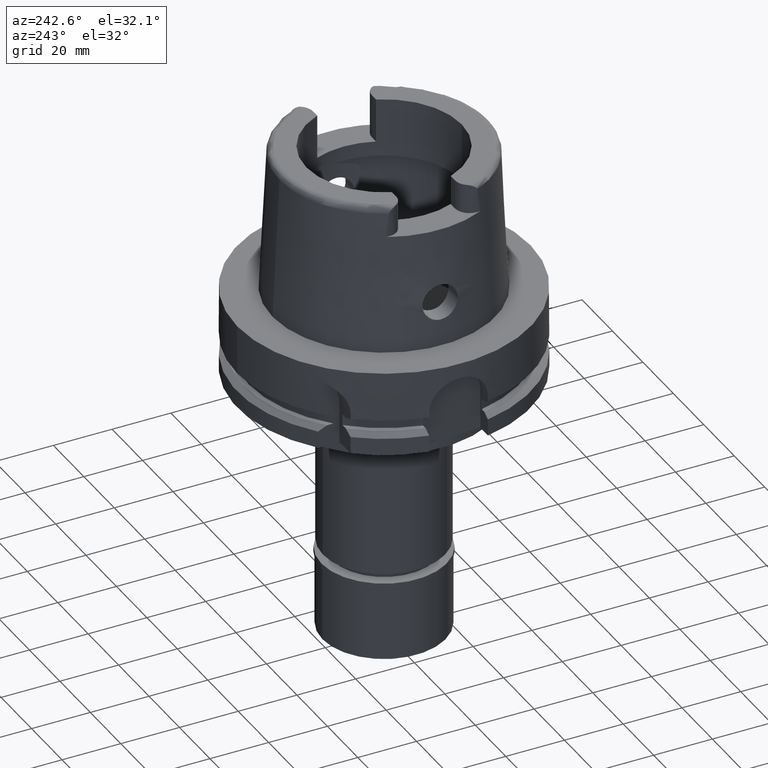
[diagram: clean part render]
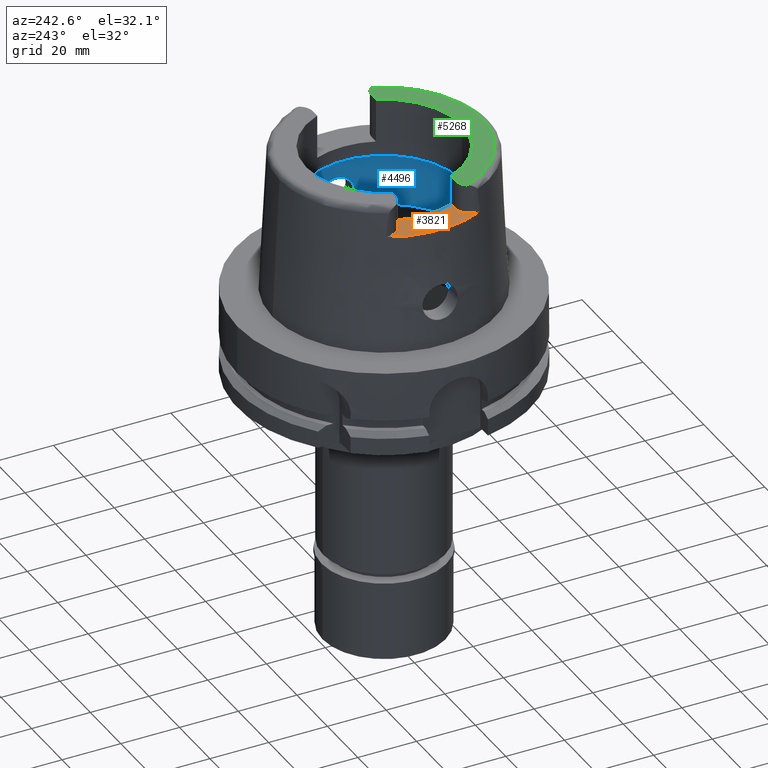
[diagram: same view with three faces highlighted in distinct colors, each labeled with its STEP entity id]
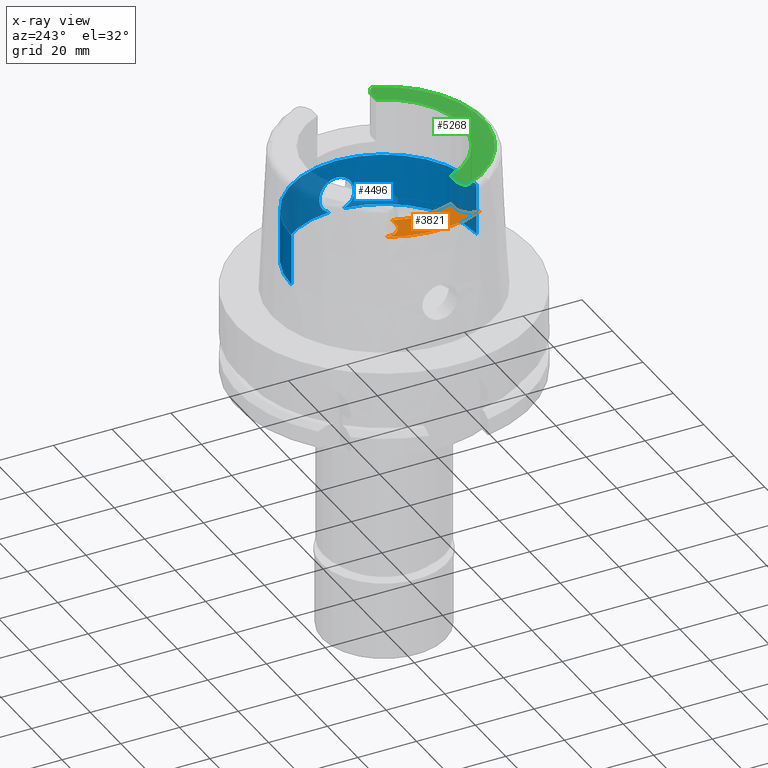
[diagram: x-ray of the same camera — body ghosted, the three highlighted faces saturated]
A machine part, auxiliary view with three faces highlighted in distinct colors.
The next image is the same camera in x-ray (body ghosted, the three faces saturated) — at least one of them is partly hidden behind the body in this view.
Their STEP definitions:

[orange] entity #3821 — the highlighted planar face has unit normal (0, 0, 1).
#69 = LINE ( 'NONE', #5186, #4869 ) ;
#107 = DIRECTION ( 'NONE',  ( 1.000000000000000000, 1.442003377036999905E-13, 0.0000000000000000000 ) ) ;
#222 = CARTESIAN_POINT ( 'NONE',  ( 0.0000000000000000000, 0.0000000000000000000, 40.00000000000000000 ) ) ;
#291 = EDGE_LOOP ( 'NONE', ( #5121, #4553, #2406, #1712, #5402, #1440, #5488, #1566 ) ) ;
#509 = AXIS2_PLACEMENT_3D ( 'NONE', #1677, #5053, #2530 ) ;
#612 = DIRECTION ( 'NONE',  ( 1.000000000000000000, 0.0000000000000000000, 0.0000000000000000000 ) ) ;
#653 = VERTEX_POINT ( 'NONE', #3463 ) ;
#708 = EDGE_CURVE ( 'NONE', #2913, #3354, #69, .T. ) ;
#727 = CARTESIAN_POINT ( 'NONE',  ( -24.53670515777999839, -10.00999999999999979, 40.00000000000000000 ) ) ;
#815 = DIRECTION ( 'NONE',  ( -1.000000000000000000, 1.435733797136999970E-13, 0.0000000000000000000 ) ) ;
#895 = AXIS2_PLACEMENT_3D ( 'NONE', #5298, #3724, #612 ) ;
#909 = CARTESIAN_POINT ( 'NONE',  ( -27.36999999999999744, 10.00999999999999979, 40.00000000000000000 ) ) ;
#1146 = AXIS2_PLACEMENT_3D ( 'NONE', #2603, #4306, #1657 ) ;
#1245 = CARTESIAN_POINT ( 'NONE',  ( -27.36999999999999744, 10.00999999999999979, 40.00000000000000000 ) ) ;
#1431 = LINE ( 'NONE', #909, #4526 ) ;
#1440 = ORIENTED_EDGE ( 'NONE', *, *, #2695, .F. ) ;
#1566 = ORIENTED_EDGE ( 'NONE', *, *, #5445, .F. ) ;
#1583 = EDGE_CURVE ( 'NONE', #2985, #1620, #2276, .T. ) ;
#1595 = CIRCLE ( 'NONE', #1146, 4.879999999999999005 ) ;
#1620 = VERTEX_POINT ( 'NONE', #3929 ) ;
#1657 = DIRECTION ( 'NONE',  ( 0.0000000000000000000, 1.000000000000000000, 0.0000000000000000000 ) ) ;
#1677 = CARTESIAN_POINT ( 'NONE',  ( -27.36999999999999744, 14.89000000000000057, 40.00000000000000000 ) ) ;
#1680 = CIRCLE ( 'NONE', #509, 4.880000000000002558 ) ;
#1693 = EDGE_CURVE ( 'NONE', #3061, #653, #1431, .T. ) ;
#1712 = ORIENTED_EDGE ( 'NONE', *, *, #5338, .F. ) ;
#1964 = EDGE_CURVE ( 'NONE', #4990, #3252, #3857, .T. ) ;
#1994 = EDGE_CURVE ( 'NONE', #3354, #3061, #1680, .T. ) ;
#2236 = DIRECTION ( 'NONE',  ( 1.119083709707969931E-06, -0.9999999999993738342, -1.731560047848954504E-13 ) ) ;
#2276 = LINE ( 'NONE', #4329, #5150 ) ;
#2294 = AXIS2_PLACEMENT_3D ( 'NONE', #3860, #5136, #3131 ) ;
#2406 = ORIENTED_EDGE ( 'NONE', *, *, #708, .F. ) ;
#2530 = DIRECTION ( 'NONE',  ( -1.000000000000000000, 0.0000000000000000000, 0.0000000000000000000 ) ) ;
#2567 = CIRCLE ( 'NONE', #2294, 35.99995025243999436 ) ;
#2603 = CARTESIAN_POINT ( 'NONE',  ( -27.36999999999999744, -14.89000000000000057, 40.00000000000000000 ) ) ;
#2661 = DIRECTION ( 'NONE',  ( 4.825223319314798498E-06, -0.9999999999883585344, 1.731606716856929216E-13 ) ) ;
#2695 = EDGE_CURVE ( 'NONE', #3252, #2985, #1595, .T. ) ;
#2913 = VERTEX_POINT ( 'NONE', #4989 ) ;
#2985 = VERTEX_POINT ( 'NONE', #4483 ) ;
#3061 = VERTEX_POINT ( 'NONE', #1245 ) ;
#3131 = DIRECTION ( 'NONE',  ( -0.8958345712659759874, -0.4443876921390880197, 0.0000000000000000000 ) ) ;
#3207 = DIRECTION ( 'NONE',  ( 0.0000000000000000000, 0.0000000000000000000, 1.000000000000000000 ) ) ;
#3252 = VERTEX_POINT ( 'NONE', #4099 ) ;
#3354 = VERTEX_POINT ( 'NONE', #5502 ) ;
#3463 = CARTESIAN_POINT ( 'NONE',  ( -24.53670515777999839, 10.00999999999999979, 40.00000000000000000 ) ) ;
#3608 = FACE_OUTER_BOUND ( 'NONE', #291, .T. ) ;
#3724 = DIRECTION ( 'NONE',  ( 0.0000000000000000000, 0.0000000000000000000, 1.000000000000000000 ) ) ;
#3821 = ADVANCED_FACE ( 'NONE', ( #3608 ), #4561, .T. ) ;
#3857 = LINE ( 'NONE', #4734, #4634 ) ;
#3860 = CARTESIAN_POINT ( 'NONE',  ( 0.0000000000000000000, 0.0000000000000000000, 40.00000000000000000 ) ) ;
#3903 = CIRCLE ( 'NONE', #4431, 26.50000000000000711 ) ;
#3929 = CARTESIAN_POINT ( 'NONE',  ( -32.24999876011999334, -15.99794043148000000, 40.00000000000000000 ) ) ;
#4099 = CARTESIAN_POINT ( 'NONE',  ( -27.36999999999999744, -10.00999999999999979, 40.00000000000000000 ) ) ;
#4306 = DIRECTION ( 'NONE',  ( 0.0000000000000000000, 0.0000000000000000000, 1.000000000000000000 ) ) ;
#4329 = CARTESIAN_POINT ( 'NONE',  ( -32.25000000000000000, -14.89000000000000057, 40.00000000000000000 ) ) ;
#4431 = AXIS2_PLACEMENT_3D ( 'NONE', #222, #3207, #4986 ) ;
#4483 = CARTESIAN_POINT ( 'NONE',  ( -32.25000000000000000, -14.89000000000000057, 40.00000000000000000 ) ) ;
#4526 = VECTOR ( 'NONE', #107, 1000.000000000000000 ) ;
#4553 = ORIENTED_EDGE ( 'NONE', *, *, #1994, .F. ) ;
#4561 = PLANE ( 'NONE',  #895 ) ;
#4634 = VECTOR ( 'NONE', #815, 1000.000000000000000 ) ;
#4734 = CARTESIAN_POINT ( 'NONE',  ( -24.53670515777999839, -10.00999999999999979, 40.00000000000000000 ) ) ;
#4869 = VECTOR ( 'NONE', #2661, 1000.000000000000227 ) ;
#4986 = DIRECTION ( 'NONE',  ( -0.9259134021805098813, 0.3777358490566039562, 0.0000000000000000000 ) ) ;
#4989 = CARTESIAN_POINT ( 'NONE',  ( -32.24999999999000266, 15.99793480980999938, 40.00000000000000000 ) ) ;
#4990 = VERTEX_POINT ( 'NONE', #727 ) ;
#5053 = DIRECTION ( 'NONE',  ( 0.0000000000000000000, 0.0000000000000000000, 1.000000000000000000 ) ) ;
#5121 = ORIENTED_EDGE ( 'NONE', *, *, #1693, .F. ) ;
#5136 = DIRECTION ( 'NONE',  ( 0.0000000000000000000, 0.0000000000000000000, -1.000000000000000000 ) ) ;
#5150 = VECTOR ( 'NONE', #2236, 1000.000000000000000 ) ;
#5186 = CARTESIAN_POINT ( 'NONE',  ( -32.25000534592000179, 15.99791057105999847, 40.00000000000000000 ) ) ;
#5298 = CARTESIAN_POINT ( 'NONE',  ( 0.0000000000000000000, 0.0000000000000000000, 40.00000000000000000 ) ) ;
#5338 = EDGE_CURVE ( 'NONE', #1620, #2913, #2567, .T. ) ;
#5402 = ORIENTED_EDGE ( 'NONE', *, *, #1583, .F. ) ;
#5445 = EDGE_CURVE ( 'NONE', #653, #4990, #3903, .T. ) ;
#5488 = ORIENTED_EDGE ( 'NONE', *, *, #1964, .F. ) ;
#5502 = CARTESIAN_POINT ( 'NONE',  ( -32.25000000000000000, 14.89000000000000057, 40.00000000000000000 ) ) ;

[blue] entity #4496 — the highlighted cylindrical surface (partial cylindrical patch) has radius 31.5 mm, axis along (0, 0, 1).
#6 = CARTESIAN_POINT ( 'NONE',  ( 31.07994342661519838, 5.127186810795189231, 18.11642369633478111 ) ) ;
#31 = CARTESIAN_POINT ( 'NONE',  ( 31.39146057856575922, -2.623126213708068644, 9.597804121014906542 ) ) ;
#32 = CARTESIAN_POINT ( 'NONE',  ( 31.01235820204978211, 5.521887666682886220, 12.65126038902635131 ) ) ;
#41 = AXIS2_PLACEMENT_3D ( 'NONE', #4032, #3611, #2723 ) ;
#50 = AXIS2_PLACEMENT_3D ( 'NONE', #3481, #801, #4633 ) ;
#64 = CARTESIAN_POINT ( 'NONE',  ( 31.07883420475886282, -5.133927056887515938, 18.10529037257128593 ) ) ;
#65 = CARTESIAN_POINT ( 'NONE',  ( 31.08261099550105300, 5.110955078027061838, 18.14296893854770687 ) ) ;
#90 = CARTESIAN_POINT ( 'NONE',  ( 31.13846683868296594, -4.759426166679978643, 18.65468646928797014 ) ) ;
#110 = CARTESIAN_POINT ( 'NONE',  ( 31.07984993651388450, -5.127765044109901638, 18.11545517955725870 ) ) ;
#132 = CARTESIAN_POINT ( 'NONE',  ( 30.95933240852243529, -5.811630177642458150, 16.52223600863163000 ) ) ;
#160 = CARTESIAN_POINT ( 'NONE',  ( 31.25913415167814335, -3.886500566118936462, 19.57146920383650723 ) ) ;
#296 = AXIS2_PLACEMENT_3D ( 'NONE', #4060, #3251, #2337 ) ;
#361 = CARTESIAN_POINT ( 'NONE',  ( 31.04516656925665785, -5.333719853767456165, 12.25201255319663574 ) ) ;
#364 = CARTESIAN_POINT ( 'NONE',  ( 30.95798640988327222, 5.818871490230399068, 16.46678530828831555 ) ) ;
#389 = CARTESIAN_POINT ( 'NONE',  ( 30.92614081974137363, 5.986368074603324096, 15.52818747631677887 ) ) ;
#419 = CARTESIAN_POINT ( 'NONE',  ( 31.28063686444619407, -3.709082751207190665, 10.28278923933702949 ) ) ;
#421 = CARTESIAN_POINT ( 'NONE',  ( 31.01918234191671786, 5.486203577511649776, 17.45331367424356372 ) ) ;
#449 = CARTESIAN_POINT ( 'NONE',  ( 31.27140100345735618, -3.786935520157026502, 10.34493851787031460 ) ) ;
#450 = CARTESIAN_POINT ( 'NONE',  ( 31.09189379749906479, 5.054047613236363645, 18.23416733600672401 ) ) ;
#473 = CARTESIAN_POINT ( 'NONE',  ( 31.10508044036110320, 4.972021697802857965, 18.36034876613993205 ) ) ;
#512 = CARTESIAN_POINT ( 'NONE',  ( 30.92787572001369156, -5.977260406834187911, 15.54911273132437444 ) ) ;
#539 = CARTESIAN_POINT ( 'NONE',  ( 30.93371347972566809, -5.946576459253946290, 15.80344265815883098 ) ) ;
#547 = CARTESIAN_POINT ( 'NONE',  ( 0.0000000000000000000, 31.50000000000000000, 9.496624327025999790 ) ) ;
#558 = CARTESIAN_POINT ( 'NONE',  ( 30.99216131076771319, -5.635640007188953859, 12.91303783525740201 ) ) ;
#587 = CARTESIAN_POINT ( 'NONE',  ( 30.94648714907189557, -5.879669211079103341, 13.80160795711451449 ) ) ;
#599 = AXIS2_PLACEMENT_3D ( 'NONE', #1879, #5275, #3165 ) ;
#689 = CARTESIAN_POINT ( 'NONE',  ( 31.30799682717442423, 3.472096596492660669, 19.89428157752134396 ) ) ;
#774 = CARTESIAN_POINT ( 'NONE',  ( 31.43757839202331184, 1.980489762233671680, 20.66371704715379565 ) ) ;
#791 = CIRCLE ( 'NONE', #599, 31.50000000000000000 ) ;
#801 = DIRECTION ( 'NONE',  ( 0.0000000000000000000, 0.0000000000000000000, 1.000000000000000000 ) ) ;
#806 = CARTESIAN_POINT ( 'NONE',  ( 31.04578962086033656, -5.330099555413807977, 12.24499431986697573 ) ) ;
#808 = CARTESIAN_POINT ( 'NONE',  ( 31.21269414980817558, 4.245461422235162097, 10.75947364941774431 ) ) ;
#814 = EDGE_CURVE ( 'NONE', #1191, #4565, #3704, .T. ) ;
#832 = CARTESIAN_POINT ( 'NONE',  ( 31.27405316013506820, 3.766091836791144232, 19.67083614214039144 ) ) ;
#851 = VECTOR ( 'NONE', #1575, 1000.000000000000000 ) ;
#857 = CARTESIAN_POINT ( 'NONE',  ( 31.24084144307349575, -4.032112334295549161, 10.55665513475695327 ) ) ;
#858 = CARTESIAN_POINT ( 'NONE',  ( 31.23133834038592482, 4.105086361239996151, 10.62410626519725021 ) ) ;
#865 = LINE ( 'NONE', #2999, #1421 ) ;
#892 = CARTESIAN_POINT ( 'NONE',  ( 30.95205847294927892, 5.850016728182851011, 16.33413282531920174 ) ) ;
#915 = CARTESIAN_POINT ( 'NONE',  ( 31.17833244018540739, 4.494009577299467040, 11.02324607710339244 ) ) ;
#936 = CARTESIAN_POINT ( 'NONE',  ( 30.93593820637317293, -5.934523303477157619, 14.11579517492844715 ) ) ;
#949 = CIRCLE ( 'NONE', #41, 31.49999999999998934 ) ;
#969 = CARTESIAN_POINT ( 'NONE',  ( 30.92535748378099214, -5.990439272434262108, 15.37896391600199486 ) ) ;
#993 = CARTESIAN_POINT ( 'NONE',  ( 31.24478707100092123, -4.000142578601820098, 19.47344728149743176 ) ) ;
#1010 = CYLINDRICAL_SURFACE ( 'NONE', #296, 31.50000000000000000 ) ;
#1012 = CARTESIAN_POINT ( 'NONE',  ( 30.95644160974891790, -5.827542915728883166, 13.56251690584222303 ) ) ;
#1042 = CARTESIAN_POINT ( 'NONE',  ( 31.26938479538287652, -3.804051455025277306, 19.63996847258456668 ) ) ;
#1101 = CARTESIAN_POINT ( 'NONE',  ( 31.43691958877289139, 1.990910738564077409, 20.66006227170717935 ) ) ;
#1105 = EDGE_CURVE ( 'NONE', #4565, #2130, #2659, .T. ) ;
#1176 = ORIENTED_EDGE ( 'NONE', *, *, #1898, .T. ) ;
#1187 = CARTESIAN_POINT ( 'NONE',  ( 31.44526226851679240, 1.855280751184632759, 20.70625288660647101 ) ) ;
#1191 = VERTEX_POINT ( 'NONE', #3341 ) ;
#1246 = CARTESIAN_POINT ( 'NONE',  ( 31.14022093112110667, 4.746243961564677427, 18.67460789632798424 ) ) ;
#1274 = CARTESIAN_POINT ( 'NONE',  ( 31.24965031920748615, -3.963256540129865169, 10.49473067062615250 ) ) ;
#1275 = CARTESIAN_POINT ( 'NONE',  ( 30.95593511852761637, 5.831238663548821144, 13.54675068044381447 ) ) ;
#1305 = CARTESIAN_POINT ( 'NONE',  ( 31.14650692347909455, -4.717085362241501656, 11.27618844019318267 ) ) ;
#1306 = CARTESIAN_POINT ( 'NONE',  ( 30.92775208938583020, 5.977411027318328074, 14.46793324744707654 ) ) ;
#1335 = CARTESIAN_POINT ( 'NONE',  ( 31.09976902777313512, -5.012334537389232736, 11.69758888125644702 ) ) ;
#1337 = CARTESIAN_POINT ( 'NONE',  ( 31.04644356686023343, 5.330231124107716489, 17.78087647721550013 ) ) ;
#1364 = CARTESIAN_POINT ( 'NONE',  ( 31.09275007007566316, -5.049392989674098331, 18.24389100051104506 ) ) ;
#1365 = CARTESIAN_POINT ( 'NONE',  ( 30.93368120438436719, 5.946711730277687735, 15.86803401409417980 ) ) ;
#1382 = CARTESIAN_POINT ( 'NONE',  ( 30.94205519966483564, -5.902657858693529214, 16.07788520470997895 ) ) ;
#1412 = CARTESIAN_POINT ( 'NONE',  ( 30.92512873479511271, -5.990998406696896872, 14.52848394555431888 ) ) ;
#1421 = VECTOR ( 'NONE', #1731, 1000.000000000000000 ) ;
#1434 = CARTESIAN_POINT ( 'NONE',  ( 31.17415888084694231, -4.519038053963284618, 18.94694945063787017 ) ) ;
#1459 = CARTESIAN_POINT ( 'NONE',  ( 31.19154537394365079, -4.398921321225700787, 19.08398155832555432 ) ) ;
#1546 = CARTESIAN_POINT ( 'NONE',  ( 31.47211239154154683, 1.331139990992936006, 20.85304534421061362 ) ) ;
#1575 = DIRECTION ( 'NONE',  ( 0.0000000000000000000, 4.980251297749999745E-14, 1.000000000000000000 ) ) ;
#1609 = CARTESIAN_POINT ( 'NONE',  ( 31.47875229831735666, 1.162986435145894726, 20.88866493886931863 ) ) ;
#1632 = CARTESIAN_POINT ( 'NONE',  ( 31.05575089752501583, -5.272422854168611117, 12.13601158013912062 ) ) ;
#1665 = CARTESIAN_POINT ( 'NONE',  ( 31.01591903648576576, -5.503779387246060750, 12.58251388947611460 ) ) ;
#1667 = CARTESIAN_POINT ( 'NONE',  ( 31.13175340653921452, 4.810160487371827998, 11.40951511559174136 ) ) ;
#1698 = CARTESIAN_POINT ( 'NONE',  ( 31.27269495443234959, 3.777356002133573476, 19.66172682914990588 ) ) ;
#1724 = CARTESIAN_POINT ( 'NONE',  ( 30.99448069278313156, 5.622125069265917929, 12.89690838049870969 ) ) ;
#1731 = DIRECTION ( 'NONE',  ( 0.0000000000000000000, -4.980251297749999745E-14, 1.000000000000000000 ) ) ;
#1754 = CARTESIAN_POINT ( 'NONE',  ( 31.30723587938423336, -3.477909003800156551, 10.10698070466151854 ) ) ;
#1755 = CARTESIAN_POINT ( 'NONE',  ( 30.94710875029627672, 5.876031469247321226, 16.21341184141273573 ) ) ;
#1783 = CARTESIAN_POINT ( 'NONE',  ( 31.17032989769484885, -4.545383508834297537, 18.91658646848391712 ) ) ;
#1784 = CARTESIAN_POINT ( 'NONE',  ( 31.08076667593378062, 5.122184330173774391, 18.12463489803345951 ) ) ;
#1804 = CARTESIAN_POINT ( 'NONE',  ( 30.93762815094126495, -5.925729445438010501, 14.05742286241953209 ) ) ;
#1806 = CARTESIAN_POINT ( 'NONE',  ( 31.40918884336000616, 2.390158196043999705, 9.496624327025999790 ) ) ;
#1823 = CARTESIAN_POINT ( 'NONE',  ( 31.08049822686088604, -5.123828647012007131, 18.12192228354330226 ) ) ;
#1854 = CARTESIAN_POINT ( 'NONE',  ( 30.93714746092238954, -5.928506821281022354, 15.93038409750430873 ) ) ;
#1863 = ORIENTED_EDGE ( 'NONE', *, *, #3882, .F. ) ;
#1879 = CARTESIAN_POINT ( 'NONE',  ( 0.0000000000000000000, 0.0000000000000000000, 9.496624327025999790 ) ) ;
#1883 = CARTESIAN_POINT ( 'NONE',  ( 31.17274451224739806, -4.528787578383446366, 18.93576471316235299 ) ) ;
#1898 = EDGE_CURVE ( 'NONE', #4062, #4983, #791, .T. ) ;
#1974 = CARTESIAN_POINT ( 'NONE',  ( 31.29475038988540447, 3.589624409586765985, 19.80800980988590609 ) ) ;
#2091 = CARTESIAN_POINT ( 'NONE',  ( 30.93324999837945910, 5.948569419086848775, 14.21580059211581926 ) ) ;
#2095 = ORIENTED_EDGE ( 'NONE', *, *, #1105, .T. ) ;
#2120 = CARTESIAN_POINT ( 'NONE',  ( 30.94743137867172678, 5.874334190984950688, 16.22159279426050205 ) ) ;
#2130 = VERTEX_POINT ( 'NONE', #3477 ) ;
#2155 = CARTESIAN_POINT ( 'NONE',  ( 31.32349046530487868, -3.327011337417507431, 10.00396380384377970 ) ) ;
#2156 = CARTESIAN_POINT ( 'NONE',  ( 31.04515965756625917, 5.333755810883202386, 12.25208129590983752 ) ) ;
#2181 = CARTESIAN_POINT ( 'NONE',  ( 30.98386632238472060, 5.680358924868381898, 13.06032426197511143 ) ) ;
#2206 = CARTESIAN_POINT ( 'NONE',  ( 30.94593095642667890, -5.882239173108793295, 16.18295263752338897 ) ) ;
#2208 = CARTESIAN_POINT ( 'NONE',  ( 31.08538339783536131, 5.094037368025559509, 18.17042460858129971 ) ) ;
#2239 = CARTESIAN_POINT ( 'NONE',  ( 31.10654970110311623, -4.964495990276641457, 18.37391207487033640 ) ) ;
#2260 = CARTESIAN_POINT ( 'NONE',  ( 31.41208232540072132, -2.351611203126827032, 20.52054309630858242 ) ) ;
#2270 = B_SPLINE_CURVE_WITH_KNOTS ( 'NONE', 3,
 ( #2435, #4929, #5432, #1609, #1546, #5017, #4075, #1187, #2909, #4604, #774, #1101, #3765, #4549, #5457, #4519, #5043, #2944, #689, #1974, #5372, #4957, #3788, #832, #1698, #4663, #2578, #3055, #1246, #4218, #473, #450, #2208, #65, #1784, #6, #1337, #421, #3496, #5514, #4246, #364, #892, #2548, #5182, #2120, #1755, #1365, #389, #3402, #3465, #3850, #1306, #5096, #3825, #2091, #5124, #4334, #1275, #2181, #1724, #32, #3430, #5481, #2994, #3906, #4751, #2156, #4691, #2608, #3077, #5156, #1667, #3371, #915, #3026, #4724, #808, #5071, #3874, #2629, #858, #4311, #2523, #2969, #4283, #1806 ),
 .UNSPECIFIED., .F., .F.,
 ( 4, 2, 2, 1, 1, 1, 1, 2, 2, 2, 2, 2, 1, 1, 2, 2, 2, 2, 1, 1, 1, 2, 2, 2, 2, 1, 1, 1, 2, 2, 2, 2, 1, 1, 2, 2, 2, 2, 1, 1, 1, 1, 1, 2, 2, 2, 2, 2, 1, 1, 2, 2, 2, 4 ),
 ( 0.0000000000000000000, 0.06250000000001131040, 0.09375000000001695866, 0.1093750000000198452, 0.1171875000000213163, 0.1210937500000220240, 0.1230468750000222877, 0.1240234375000223710, 0.1250000000000224543, 0.1875000000000307254, 0.2187500000000349165, 0.2343750000000370814, 0.2421875000000383027, 0.2460937500000389411, 0.2480468750000393852, 0.2500000000000398570, 0.3125000000000611178, 0.3437500000000718869, 0.3593750000000772715, 0.3671875000000802691, 0.3710937500000818234, 0.3730468750000825451, 0.3750000000000833222, 0.4375000000000988098, 0.4687500000001065814, 0.4843750000001104672, 0.4921875000001124101, 0.4960937500001130207, 0.4980468750001130207, 0.5000000000001130207, 0.5625000000001159073, 0.5937500000001173506, 0.6093750000001180167, 0.6171875000001183498, 0.6210937500001184608, 0.6250000000001186828, 0.6875000000001209033, 0.7187500000001219025, 0.7343750000001223466, 0.7421875000001227907, 0.7460937500001230127, 0.7480468750001229017, 0.7490234375001229017, 0.7495117187501227907, 0.7500000000001225686, 0.8125000000000919265, 0.8437500000000766054, 0.8593750000000690559, 0.8671875000000651701, 0.8710937500000632827, 0.8730468750000622835, 0.8750000000000612843, 0.9375000000000306422, 1.000000000000000000 ),
 .UNSPECIFIED. ) ;
#2281 = CARTESIAN_POINT ( 'NONE',  ( 31.34174644224787443, -3.171146747768225360, 20.10494107966232491 ) ) ;
#2315 = CARTESIAN_POINT ( 'NONE',  ( 31.07379508718859284, -5.164427715812382580, 18.05445034828940720 ) ) ;
#2337 = DIRECTION ( 'NONE',  ( 0.0000000000000000000, 1.000000000000000000, 0.0000000000000000000 ) ) ;
#2435 = CARTESIAN_POINT ( 'NONE',  ( 31.50000000000000000, 0.0000000000000000000, 21.00000000000000000 ) ) ;
#2442 = CARTESIAN_POINT ( 'NONE',  ( 31.40918884336000616, 2.390158196043999705, 9.496624327025999790 ) ) ;
#2521 = CARTESIAN_POINT ( 'NONE',  ( 31.25699292795981776, -3.904373696315554643, 10.44385189567132066 ) ) ;
#2523 = CARTESIAN_POINT ( 'NONE',  ( 31.30905946900450942, 3.469249633376950914, 10.09276669319905473 ) ) ;
#2548 = CARTESIAN_POINT ( 'NONE',  ( 30.94930874908865093, 5.864462894851047103, 16.26835216295868491 ) ) ;
#2577 = CARTESIAN_POINT ( 'NONE',  ( 31.23701424631832424, -4.061641705521139123, 10.58375201283587330 ) ) ;
#2578 = CARTESIAN_POINT ( 'NONE',  ( 31.20656786204429167, 4.300290092660576491, 19.19830570400033309 ) ) ;
#2608 = CARTESIAN_POINT ( 'NONE',  ( 31.04594355521869531, 5.329193617014270856, 12.24324506060364826 ) ) ;
#2628 = CARTESIAN_POINT ( 'NONE',  ( 31.06850304235647187, -5.198388166458768112, 12.00310492250400074 ) ) ;
#2629 = CARTESIAN_POINT ( 'NONE',  ( 31.22972433125172387, 4.117361242907274566, 10.63564870396714390 ) ) ;
#2652 = CARTESIAN_POINT ( 'NONE',  ( 31.16673046480104148, -4.570058886066544979, 18.88788730669432425 ) ) ;
#2659 = CIRCLE ( 'NONE', #50, 31.50000000000000000 ) ;
#2684 = CARTESIAN_POINT ( 'NONE',  ( 31.38261499294666379, -2.721413825894000382, 20.35005192207600899 ) ) ;
#2687 = CARTESIAN_POINT ( 'NONE',  ( 31.40918884336000616, -2.390158196043999705, 9.496624327025999790 ) ) ;
#2703 = CARTESIAN_POINT ( 'NONE',  ( 31.43467918935117922, -2.025951676136496182, 20.64761982223102876 ) ) ;
#2723 = DIRECTION ( 'NONE',  ( 0.9971171061384295209, -0.07587803796965221503, 0.0000000000000000000 ) ) ;
#2726 = CARTESIAN_POINT ( 'NONE',  ( 30.94200140833407531, -5.903012917132723913, 13.92039329289891469 ) ) ;
#2757 = CARTESIAN_POINT ( 'NONE',  ( 31.39509039489751174, -2.572352210404821982, 20.42299635082979137 ) ) ;
#2909 = CARTESIAN_POINT ( 'NONE',  ( 31.44083220571482329, 1.928355488484507552, 20.68175114115967261 ) ) ;
#2942 = CARTESIAN_POINT ( 'NONE',  ( 31.04667305263991750, -5.324970437935123257, 12.23508380929128236 ) ) ;
#2944 = CARTESIAN_POINT ( 'NONE',  ( 31.31649881192442209, 3.393896965317773518, 19.94875526140481270 ) ) ;
#2969 = CARTESIAN_POINT ( 'NONE',  ( 31.36791434816710478, 2.890017598771759122, 9.730803664233782513 ) ) ;
#2994 = CARTESIAN_POINT ( 'NONE',  ( 31.03978202246671358, 5.364983747411771198, 12.31339122229119276 ) ) ;
#2999 = CARTESIAN_POINT ( 'NONE',  ( 0.0000000000000000000, 31.50000000000000000, 9.496624327025999790 ) ) ;
#3026 = CARTESIAN_POINT ( 'NONE',  ( 31.18851592926922223, 4.421878233707920103, 10.94295407238800877 ) ) ;
#3034 = EDGE_LOOP ( 'NONE', ( #4996, #3237, #2095, #1863, #1176, #4464, #4789 ) ) ;
#3055 = CARTESIAN_POINT ( 'NONE',  ( 31.15642859291550337, 4.638933875672574203, 18.80918087171724551 ) ) ;
#3076 = CARTESIAN_POINT ( 'NONE',  ( 31.42880493544827303, -2.115547535011680580, 20.61489359789293729 ) ) ;
#3077 = CARTESIAN_POINT ( 'NONE',  ( 31.06173353536877002, 5.237259523387828963, 12.06563604468467865 ) ) ;
#3101 = CARTESIAN_POINT ( 'NONE',  ( 31.13012773132759037, -4.813637000376106201, 18.58277470826973499 ) ) ;
#3127 = CARTESIAN_POINT ( 'NONE',  ( 30.94473442587264600, -5.888543164879020964, 16.15146061629443608 ) ) ;
#3149 = CARTESIAN_POINT ( 'NONE',  ( 30.94719612376678697, -5.875573421955095910, 16.21561796998276961 ) ) ;
#3158 = EDGE_CURVE ( 'NONE', #5353, #3370, #3793, .T. ) ;
#3165 = DIRECTION ( 'NONE',  ( 0.0000000000000000000, 1.000000000000000000, 0.0000000000000000000 ) ) ;
#3171 = CARTESIAN_POINT ( 'NONE',  ( 31.20791925689769997, -4.280337166327460530, 19.20810264865404804 ) ) ;
#3237 = ORIENTED_EDGE ( 'NONE', *, *, #814, .T. ) ;
#3251 = DIRECTION ( 'NONE',  ( 0.0000000000000000000, 0.0000000000000000000, 1.000000000000000000 ) ) ;
#3341 = CARTESIAN_POINT ( 'NONE',  ( 0.0000000000000000000, -31.50000000000000000, 9.496624327025999790 ) ) ;
#3345 = CARTESIAN_POINT ( 'NONE',  ( 31.04847930279105839, -5.314496369088463013, 12.21496377446736048 ) ) ;
#3369 = CARTESIAN_POINT ( 'NONE',  ( 31.05224934946171444, -5.292672633281177319, 12.17353485423571868 ) ) ;
#3370 = VERTEX_POINT ( 'NONE', #3393 ) ;
#3371 = CARTESIAN_POINT ( 'NONE',  ( 31.14922811019159354, 4.695564990377505410, 11.25908503201786814 ) ) ;
#3393 = CARTESIAN_POINT ( 'NONE',  ( 31.50000000000000000, 0.0000000000000000000, 21.00000000000000000 ) ) ;
#3402 = CARTESIAN_POINT ( 'NONE',  ( 30.92305064168423812, 6.002379107351443643, 15.01847255593690811 ) ) ;
#3430 = CARTESIAN_POINT ( 'NONE',  ( 31.02178594510036191, 5.468548919939948405, 12.52830873802309597 ) ) ;
#3465 = CARTESIAN_POINT ( 'NONE',  ( 30.92339064881641875, 6.000483960322590349, 14.84857594199501385 ) ) ;
#3477 = CARTESIAN_POINT ( 'NONE',  ( 0.0000000000000000000, 31.50000000000000000, 27.11662432702999936 ) ) ;
#3481 = CARTESIAN_POINT ( 'NONE',  ( 0.0000000000000000000, 0.0000000000000000000, 27.11662432702999936 ) ) ;
#3495 = CARTESIAN_POINT ( 'NONE',  ( 30.96438855580216654, -5.785537089370411223, 13.40108695375786496 ) ) ;
#3496 = CARTESIAN_POINT ( 'NONE',  ( 30.98612573582064300, 5.668773299044499225, 16.97339902289759550 ) ) ;
#3517 = CARTESIAN_POINT ( 'NONE',  ( 31.27234737172142331, -3.780047941302525860, 19.65954710132990613 ) ) ;
#3545 = CARTESIAN_POINT ( 'NONE',  ( 31.26630935310781467, -3.828901421194403021, 19.61955822672340588 ) ) ;
#3570 = CARTESIAN_POINT ( 'NONE',  ( 30.97632546820336330, -5.723077517489620902, 16.83400863669762515 ) ) ;
#3592 = CARTESIAN_POINT ( 'NONE',  ( 31.02206680510773040, -5.468744875070024491, 17.47498076031610381 ) ) ;
#3611 = DIRECTION ( 'NONE',  ( 0.0000000000000000000, 0.0000000000000000000, -1.000000000000000000 ) ) ;
#3704 = LINE ( 'NONE', #5400, #851 ) ;
#3765 = CARTESIAN_POINT ( 'NONE',  ( 31.43652097807678913, 1.997185708122694026, 20.65785017133801915 ) ) ;
#3786 = CARTESIAN_POINT ( 'NONE',  ( 31.04514588264369834, -5.333839943336500689, 12.25224459802766752 ) ) ;
#3788 = CARTESIAN_POINT ( 'NONE',  ( 31.27640482556440205, 3.746488994445092757, 19.68657425038498232 ) ) ;
#3793 = B_SPLINE_CURVE_WITH_KNOTS ( 'NONE', 3,
 ( #5095, #31, #4690, #2155, #1754, #419, #449, #2521, #1274, #857, #2577, #4750, #5155, #3849, #1305, #1335, #5042, #2628, #5455, #1632, #3369, #3345, #2942, #806, #4217, #361, #3786, #1665, #558, #3495, #1012, #587, #2726, #1804, #936, #3932, #3905, #1412, #3982, #969, #512, #539, #1854, #1382, #3127, #2206, #4820, #3149, #132, #3570, #4455, #3592, #4384, #5259, #5180, #4427, #2315, #5278, #64, #110, #1823, #1364, #2239, #3101, #90, #3955, #4009, #2652, #1783, #1883, #1434, #1459, #3171, #4867, #993, #160, #3545, #1042, #4797, #3517, #5206, #2281, #2684, #2757, #2260, #4842, #3076, #5233, #2703, #4772, #4402, #4359, #5339, #4065 ),
 .UNSPECIFIED., .F., .F.,
 ( 4, 2, 2, 2, 1, 1, 2, 2, 2, 2, 2, 1, 1, 1, 1, 2, 2, 2, 2, 1, 1, 2, 2, 2, 2, 1, 1, 1, 2, 2, 2, 2, 2, 1, 1, 1, 2, 2, 2, 2, 1, 1, 2, 2, 2, 1, 1, 1, 2, 2, 2, 2, 1, 1, 1, 2, 2, 4 ),
 ( 0.0000000000000000000, 0.06249999999999027167, 0.09374999999998545608, 0.1093749999999831107, 0.1171874999999819172, 0.1210937499999813205, 0.1230468749999810429, 0.1249999999999807654, 0.1874999999999735767, 0.2187499999999699962, 0.2343749999999683309, 0.2421874999999673872, 0.2460937499999669709, 0.2480468749999667211, 0.2490234374999666100, 0.2495117187499667766, 0.2499999999999669154, 0.3124999999999806266, 0.3437499999999874545, 0.3593749999999906741, 0.3671874999999922839, 0.3710937499999929501, 0.3749999999999936162, 0.4375000000000039413, 0.4687500000000091038, 0.4843750000000116573, 0.4921875000000129341, 0.4960937500000136002, 0.4980468750000142109, 0.5000000000000148770, 0.5625000000000308642, 0.5937500000000389688, 0.6093750000000429656, 0.6171875000000447420, 0.6210937500000455191, 0.6230468750000459632, 0.6240234375000459632, 0.6250000000000459632, 0.6562500000000432987, 0.6718750000000417444, 0.6796875000000409672, 0.6835937500000407452, 0.6855468750000405231, 0.6875000000000403011, 0.7187500000000317524, 0.7343750000000277556, 0.7421875000000257572, 0.7460937500000249800, 0.7480468750000247580, 0.7500000000000245359, 0.8125000000000175415, 0.8437500000000142109, 0.8593750000000124345, 0.8671875000000115463, 0.8710937500000111022, 0.8730468750000109912, 0.8750000000000108802, 1.000000000000000000 ),
 .UNSPECIFIED. ) ;
#3825 = CARTESIAN_POINT ( 'NONE',  ( 30.93222307588827746, 5.953947335122485640, 14.25773456526052030 ) ) ;
#3849 = CARTESIAN_POINT ( 'NONE',  ( 31.18534778162140242, -4.455291796195552045, 10.95204681757130416 ) ) ;
#3850 = CARTESIAN_POINT ( 'NONE',  ( 30.92595575924154261, 5.986892630695828110, 14.59465955126851533 ) ) ;
#3874 = CARTESIAN_POINT ( 'NONE',  ( 31.22684705252590831, 4.139171888733835125, 10.65632852125138719 ) ) ;
#3882 = EDGE_CURVE ( 'NONE', #4062, #2130, #865, .T. ) ;
#3905 = CARTESIAN_POINT ( 'NONE',  ( 30.93437202078807147, -5.942685729333410549, 14.17239311531688983 ) ) ;
#3906 = CARTESIAN_POINT ( 'NONE',  ( 31.04290616261345903, 5.346857069822865682, 12.27762055518139839 ) ) ;
#3932 = CARTESIAN_POINT ( 'NONE',  ( 30.93485253412783820, -5.940179514840165709, 14.15462887223034905 ) ) ;
#3955 = CARTESIAN_POINT ( 'NONE',  ( 31.15169514563684672, -4.671635427515087535, 18.76537383118921909 ) ) ;
#3982 = CARTESIAN_POINT ( 'NONE',  ( 30.92192358580875577, -6.008214329859579372, 14.86860033528498626 ) ) ;
#4009 = CARTESIAN_POINT ( 'NONE',  ( 31.15848921059397725, -4.626121234484023681, 18.82142084166779838 ) ) ;
#4032 = CARTESIAN_POINT ( 'NONE',  ( 0.0000000000000000000, 0.0000000000000000000, 9.496624327025999790 ) ) ;
#4060 = CARTESIAN_POINT ( 'NONE',  ( 0.0000000000000000000, 0.0000000000000000000, -116.9500000000000028 ) ) ;
#4062 = VERTEX_POINT ( 'NONE', #547 ) ;
#4065 = CARTESIAN_POINT ( 'NONE',  ( 31.50000000000000000, 0.0000000000000000000, 21.00000000000000000 ) ) ;
#4075 = CARTESIAN_POINT ( 'NONE',  ( 31.45368665023863386, 1.708864027833958632, 20.75267065280553780 ) ) ;
#4217 = CARTESIAN_POINT ( 'NONE',  ( 31.04541522723252811, -5.332274785468095857, 12.24920955023412183 ) ) ;
#4218 = CARTESIAN_POINT ( 'NONE',  ( 31.11666758030229829, 4.898254265360369786, 18.46619371724810321 ) ) ;
#4246 = CARTESIAN_POINT ( 'NONE',  ( 30.96380205162004629, 5.788176507945655302, 16.58225973777830120 ) ) ;
#4265 = EDGE_CURVE ( 'NONE', #3370, #4983, #2270, .T. ) ;
#4283 = CARTESIAN_POINT ( 'NONE',  ( 31.39148165975850446, 2.622849184680384749, 9.597683805186871808 ) ) ;
#4311 = CARTESIAN_POINT ( 'NONE',  ( 31.27377190143330310, 3.781501996804778276, 10.32190482682020338 ) ) ;
#4334 = CARTESIAN_POINT ( 'NONE',  ( 30.94253019240696645, 5.900031414499672167, 13.86580438277718663 ) ) ;
#4359 = CARTESIAN_POINT ( 'NONE',  ( 31.47898662157553318, -1.327305061032411970, 20.89339729618392738 ) ) ;
#4384 = CARTESIAN_POINT ( 'NONE',  ( 31.04264841156342669, -5.349512917937515155, 17.71861851111085429 ) ) ;
#4402 = CARTESIAN_POINT ( 'NONE',  ( 31.43630319665084016, -2.000633274148063467, 20.65664097112443898 ) ) ;
#4427 = CARTESIAN_POINT ( 'NONE',  ( 31.06686353808661849, -5.206168992445896038, 17.98323322139119895 ) ) ;
#4455 = CARTESIAN_POINT ( 'NONE',  ( 31.00965186941976626, -5.538760453944932216, 17.31331658479441060 ) ) ;
#4464 = ORIENTED_EDGE ( 'NONE', *, *, #4265, .F. ) ;
#4496 = ADVANCED_FACE ( 'NONE', ( #5276 ), #1010, .F. ) ;
#4519 = CARTESIAN_POINT ( 'NONE',  ( 31.35604797469014571, 3.006503335397936461, 20.19521886540622901 ) ) ;
#4529 = EDGE_CURVE ( 'NONE', #5353, #1191, #949, .T. ) ;
#4549 = CARTESIAN_POINT ( 'NONE',  ( 31.41935557497223286, 2.266486460318849705, 20.56256680226775302 ) ) ;
#4565 = VERTEX_POINT ( 'NONE', #4840 ) ;
#4604 = CARTESIAN_POINT ( 'NONE',  ( 31.43856270632851135, 1.964855403844353088, 20.66917599335422295 ) ) ;
#4633 = DIRECTION ( 'NONE',  ( 0.0000000000000000000, -1.000000000000000000, 0.0000000000000000000 ) ) ;
#4663 = CARTESIAN_POINT ( 'NONE',  ( 31.23940190265986772, 4.052382083139893787, 19.43805874657591914 ) ) ;
#4690 = CARTESIAN_POINT ( 'NONE',  ( 31.36781995095271114, -2.891030392004052985, 9.731274184118150927 ) ) ;
#4691 = CARTESIAN_POINT ( 'NONE',  ( 31.04561233033818013, 5.331121729183105451, 12.24697450737363802 ) ) ;
#4724 = CARTESIAN_POINT ( 'NONE',  ( 31.20451423152373138, 4.305611747129967526, 10.82090145173631512 ) ) ;
#4750 = CARTESIAN_POINT ( 'NONE',  ( 31.23445123423124059, -4.081330726004147813, 10.60194143591352756 ) ) ;
#4751 = CARTESIAN_POINT ( 'NONE',  ( 31.04448160346385777, 5.337700237538184567, 12.25974200205381059 ) ) ;
#4772 = CARTESIAN_POINT ( 'NONE',  ( 31.43582625036867029, -2.008097105409311744, 20.65399291348545674 ) ) ;
#4789 = ORIENTED_EDGE ( 'NONE', *, *, #3158, .F. ) ;
#4797 = CARTESIAN_POINT ( 'NONE',  ( 31.27143516933251277, -3.787448466993871055, 19.65353081099980415 ) ) ;
#4820 = CARTESIAN_POINT ( 'NONE',  ( 30.94673937474064829, -5.877979907296396966, 16.20393805559050548 ) ) ;
#4840 = CARTESIAN_POINT ( 'NONE',  ( 0.0000000000000000000, -31.50000000000000000, 27.11662432702999936 ) ) ;
#4842 = CARTESIAN_POINT ( 'NONE',  ( 31.42014799754655385, -2.241948991979260342, 20.56635063826048082 ) ) ;
#4867 = CARTESIAN_POINT ( 'NONE',  ( 31.23249526844682933, -4.094814554887085123, 19.38632503365269244 ) ) ;
#4929 = CARTESIAN_POINT ( 'NONE',  ( 31.50000000000001421, 0.3265472149150754899, 21.00000000000000711 ) ) ;
#4957 = CARTESIAN_POINT ( 'NONE',  ( 31.27991690307833750, 3.717080725262412066, 19.71003267285577465 ) ) ;
#4983 = VERTEX_POINT ( 'NONE', #2442 ) ;
#4996 = ORIENTED_EDGE ( 'NONE', *, *, #4529, .T. ) ;
#5017 = CARTESIAN_POINT ( 'NONE',  ( 31.46016055934507705, 1.583016060059128316, 20.78805481339340133 ) ) ;
#5042 = CARTESIAN_POINT ( 'NONE',  ( 31.08611029445572882, -5.094553945202400236, 11.82761940520752297 ) ) ;
#5043 = CARTESIAN_POINT ( 'NONE',  ( 31.34101784584630934, 3.160491833568750408, 20.10354311864270116 ) ) ;
#5071 = CARTESIAN_POINT ( 'NONE',  ( 31.22255373033181769, 4.171618812877786020, 10.68732656836451156 ) ) ;
#5095 = CARTESIAN_POINT ( 'NONE',  ( 31.40918884336000616, -2.390158196043999705, 9.496624327025999790 ) ) ;
#5096 = CARTESIAN_POINT ( 'NONE',  ( 30.93074691401797338, 5.961683198801113193, 14.32068905443762752 ) ) ;
#5124 = CARTESIAN_POINT ( 'NONE',  ( 30.93382932713273803, 5.945537591978965253, 14.19317861226803323 ) ) ;
#5155 = CARTESIAN_POINT ( 'NONE',  ( 31.23332474824206173, -4.089952196194744261, 10.60995204330339270 ) ) ;
#5156 = CARTESIAN_POINT ( 'NONE',  ( 31.08511384461257165, 5.105111756524569167, 11.82907956089339763 ) ) ;
#5180 = CARTESIAN_POINT ( 'NONE',  ( 31.06110588555900875, -5.240530721476065246, 17.92215538999412061 ) ) ;
#5182 = CARTESIAN_POINT ( 'NONE',  ( 30.94817620556403170, 5.870417001622746156, 16.24028035920213853 ) ) ;
#5206 = CARTESIAN_POINT ( 'NONE',  ( 31.30991094865379765, -3.474571594553556686, 19.90636111237910910 ) ) ;
#5233 = CARTESIAN_POINT ( 'NONE',  ( 31.43294515116537724, -2.052765183954003092, 20.63797733516987876 ) ) ;
#5259 = CARTESIAN_POINT ( 'NONE',  ( 31.04983548086929801, -5.307402022677979225, 17.80001807738775099 ) ) ;
#5275 = DIRECTION ( 'NONE',  ( 0.0000000000000000000, 0.0000000000000000000, -1.000000000000000000 ) ) ;
#5276 = FACE_OUTER_BOUND ( 'NONE', #3034, .T. ) ;
#5278 = CARTESIAN_POINT ( 'NONE',  ( 31.07731443369452862, -5.143140088095518259, 18.09004152505130136 ) ) ;
#5339 = CARTESIAN_POINT ( 'NONE',  ( 31.49999999999999289, -0.6497135255278082555, 20.99999999999998934 ) ) ;
#5353 = VERTEX_POINT ( 'NONE', #2687 ) ;
#5372 = CARTESIAN_POINT ( 'NONE',  ( 31.28800380619987820, 3.648444827490624487, 19.76373384510609910 ) ) ;
#5400 = CARTESIAN_POINT ( 'NONE',  ( 0.0000000000000000000, -31.50000000000000000, 9.496624327025999790 ) ) ;
#5432 = CARTESIAN_POINT ( 'NONE',  ( 31.49468807457933650, 0.6599461429152900793, 20.97328384817429026 ) ) ;
#5455 = CARTESIAN_POINT ( 'NONE',  ( 31.06311409963620207, -5.229744054156727273, 12.05835644289808961 ) ) ;
#5457 = CARTESIAN_POINT ( 'NONE',  ( 31.39719067990927215, 2.554411315067872668, 20.43989230540277191 ) ) ;
#5481 = CARTESIAN_POINT ( 'NONE',  ( 31.03364070838958710, 5.400491843053921492, 12.38498101507262206 ) ) ;
#5514 = CARTESIAN_POINT ( 'NONE',  ( 30.97641273900847381, 5.721091981084633460, 16.81527937345244084 ) ) ;

[green] entity #5268 — the highlighted planar face has unit normal (0, 0, 1).
#82 = DIRECTION ( 'NONE',  ( 0.0000000000000000000, -1.000000000000000000, 0.0000000000000000000 ) ) ;
#208 = AXIS2_PLACEMENT_3D ( 'NONE', #4788, #961, #82 ) ;
#210 = AXIS2_PLACEMENT_3D ( 'NONE', #265, #2717, #5269 ) ;
#214 = VECTOR ( 'NONE', #1416, 1000.000000000000000 ) ;
#265 = CARTESIAN_POINT ( 'NONE',  ( 27.36999999999999744, -14.89000000000000057, 50.00000000000000000 ) ) ;
#267 = ORIENTED_EDGE ( 'NONE', *, *, #5300, .T. ) ;
#349 = CARTESIAN_POINT ( 'NONE',  ( 27.36999999999999744, -10.00999999999999979, 50.00000000000000000 ) ) ;
#359 = ORIENTED_EDGE ( 'NONE', *, *, #463, .F. ) ;
#463 = EDGE_CURVE ( 'NONE', #5054, #4555, #2828, .T. ) ;
#491 = EDGE_CURVE ( 'NONE', #3447, #2860, #1563, .T. ) ;
#643 = CARTESIAN_POINT ( 'NONE',  ( 31.35385269249000473, -12.07161079256999869, 50.00000000000000000 ) ) ;
#744 = DIRECTION ( 'NONE',  ( -0.8163632566568778115, 0.5775387720149849358, 0.0000000000000000000 ) ) ;
#930 = DIRECTION ( 'NONE',  ( 0.0000000000000000000, 0.0000000000000000000, -1.000000000000000000 ) ) ;
#961 = DIRECTION ( 'NONE',  ( 0.0000000000000000000, 0.0000000000000000000, 1.000000000000000000 ) ) ;
#1226 = EDGE_CURVE ( 'NONE', #4555, #3447, #1316, .T. ) ;
#1299 = VECTOR ( 'NONE', #3780, 1000.000000000000000 ) ;
#1314 = VERTEX_POINT ( 'NONE', #5127 ) ;
#1316 = CIRCLE ( 'NONE', #3360, 33.59743838135999994 ) ;
#1416 = DIRECTION ( 'NONE',  ( -1.000000000000000000, -1.454542536837999925E-13, 0.0000000000000000000 ) ) ;
#1524 = ORIENTED_EDGE ( 'NONE', *, *, #1226, .F. ) ;
#1563 = CIRCLE ( 'NONE', #1839, 4.880000000000001670 ) ;
#1686 = ORIENTED_EDGE ( 'NONE', *, *, #3383, .T. ) ;
#1708 = CARTESIAN_POINT ( 'NONE',  ( 27.36999999999999744, -10.00999999999999979, 50.00000000000000000 ) ) ;
#1839 = AXIS2_PLACEMENT_3D ( 'NONE', #5094, #3320, #744 ) ;
#1886 = FACE_OUTER_BOUND ( 'NONE', #5192, .T. ) ;
#1944 = CARTESIAN_POINT ( 'NONE',  ( 24.53670515777999839, -10.00999999999999979, 50.00000000000000000 ) ) ;
#2085 = LINE ( 'NONE', #2931, #1299 ) ;
#2142 = ORIENTED_EDGE ( 'NONE', *, *, #491, .F. ) ;
#2286 = CIRCLE ( 'NONE', #208, 26.50000000000000000 ) ;
#2387 = AXIS2_PLACEMENT_3D ( 'NONE', #5238, #3442, #2734 ) ;
#2717 = DIRECTION ( 'NONE',  ( 0.0000000000000000000, 0.0000000000000000000, -1.000000000000000000 ) ) ;
#2734 = DIRECTION ( 'NONE',  ( 1.000000000000000000, 0.0000000000000000000, 0.0000000000000000000 ) ) ;
#2828 = CIRCLE ( 'NONE', #210, 4.879999999999999005 ) ;
#2860 = VERTEX_POINT ( 'NONE', #4073 ) ;
#2862 = CIRCLE ( 'NONE', #4010, 26.50000000000000711 ) ;
#2931 = CARTESIAN_POINT ( 'NONE',  ( -24.53670515777999839, -10.00999999999999979, 50.00000000000000000 ) ) ;
#2959 = VERTEX_POINT ( 'NONE', #1944 ) ;
#2975 = EDGE_CURVE ( 'NONE', #1314, #4731, #2862, .T. ) ;
#3320 = DIRECTION ( 'NONE',  ( 0.0000000000000000000, 0.0000000000000000000, -1.000000000000000000 ) ) ;
#3337 = CARTESIAN_POINT ( 'NONE',  ( -31.35385269249000473, -12.07161079256999869, 50.00000000000000000 ) ) ;
#3360 = AXIS2_PLACEMENT_3D ( 'NONE', #4764, #930, #3508 ) ;
#3383 = EDGE_CURVE ( 'NONE', #1314, #2860, #2085, .T. ) ;
#3442 = DIRECTION ( 'NONE',  ( 0.0000000000000000000, 0.0000000000000000000, 1.000000000000000000 ) ) ;
#3447 = VERTEX_POINT ( 'NONE', #3337 ) ;
#3484 = CARTESIAN_POINT ( 'NONE',  ( 0.0000000000000000000, -26.50000000000000000, 50.00000000000000000 ) ) ;
#3508 = DIRECTION ( 'NONE',  ( 0.9332215253017949186, -0.3593015233941980191, 0.0000000000000000000 ) ) ;
#3780 = DIRECTION ( 'NONE',  ( -1.000000000000000000, 1.442003377036999905E-13, 0.0000000000000000000 ) ) ;
#4010 = AXIS2_PLACEMENT_3D ( 'NONE', #4517, #5401, #5315 ) ;
#4073 = CARTESIAN_POINT ( 'NONE',  ( -27.36999999999999744, -10.00999999999999979, 50.00000000000000000 ) ) ;
#4517 = CARTESIAN_POINT ( 'NONE',  ( 0.0000000000000000000, 0.0000000000000000000, 50.00000000000000000 ) ) ;
#4555 = VERTEX_POINT ( 'NONE', #643 ) ;
#4644 = ORIENTED_EDGE ( 'NONE', *, *, #2975, .F. ) ;
#4679 = ORIENTED_EDGE ( 'NONE', *, *, #4681, .F. ) ;
#4681 = EDGE_CURVE ( 'NONE', #4731, #2959, #2286, .T. ) ;
#4731 = VERTEX_POINT ( 'NONE', #3484 ) ;
#4764 = CARTESIAN_POINT ( 'NONE',  ( 0.0000000000000000000, 0.0000000000000000000, 50.00000000000000000 ) ) ;
#4788 = CARTESIAN_POINT ( 'NONE',  ( 0.0000000000000000000, 0.0000000000000000000, 50.00000000000000000 ) ) ;
#5054 = VERTEX_POINT ( 'NONE', #349 ) ;
#5094 = CARTESIAN_POINT ( 'NONE',  ( -27.36999999999999744, -14.89000000000000057, 50.00000000000000000 ) ) ;
#5127 = CARTESIAN_POINT ( 'NONE',  ( -24.53670515777999839, -10.00999999999999979, 50.00000000000000000 ) ) ;
#5192 = EDGE_LOOP ( 'NONE', ( #1524, #359, #267, #4679, #4644, #1686, #2142 ) ) ;
#5238 = CARTESIAN_POINT ( 'NONE',  ( 0.0000000000000000000, 0.0000000000000000000, 50.00000000000000000 ) ) ;
#5268 = ADVANCED_FACE ( 'NONE', ( #1886 ), #5281, .T. ) ;
#5269 = DIRECTION ( 'NONE',  ( 0.0000000000000000000, 1.000000000000000000, 0.0000000000000000000 ) ) ;
#5281 = PLANE ( 'NONE',  #2387 ) ;
#5300 = EDGE_CURVE ( 'NONE', #5054, #2959, #5525, .T. ) ;
#5315 = DIRECTION ( 'NONE',  ( -0.9259134021805098813, -0.3777358490566039562, 0.0000000000000000000 ) ) ;
#5401 = DIRECTION ( 'NONE',  ( 0.0000000000000000000, 0.0000000000000000000, 1.000000000000000000 ) ) ;
#5525 = LINE ( 'NONE', #1708, #214 ) ;